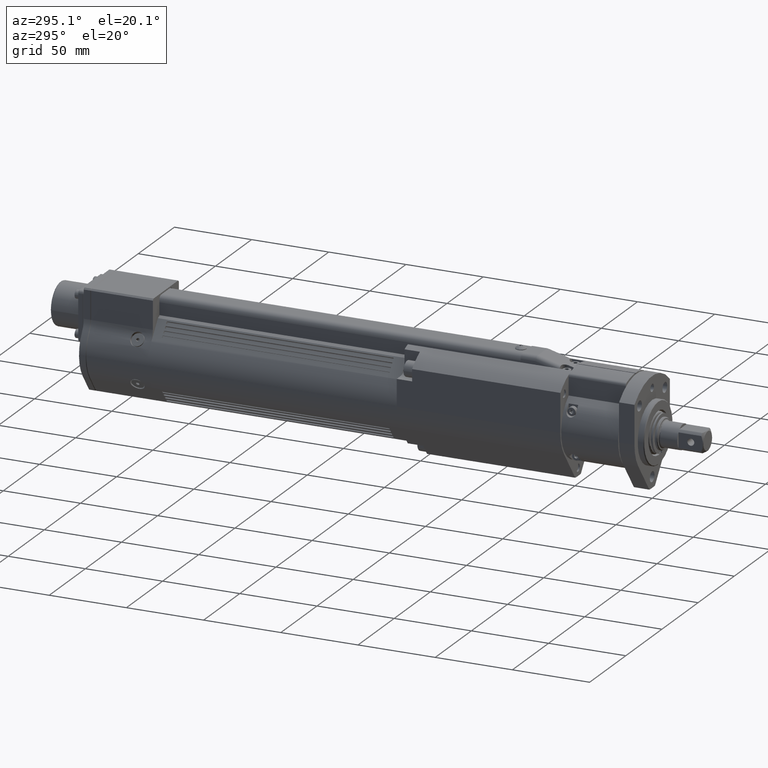
[diagram: clean part render]
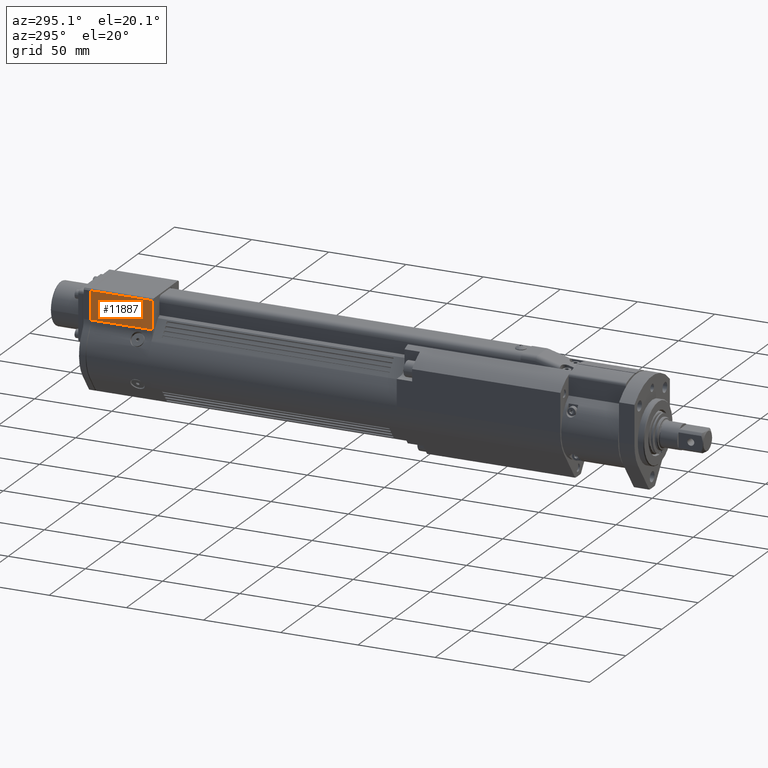
[diagram: same view with one face highlighted and labeled with its STEP entity id]
A machine part, auxiliary view. The second image highlights one B-rep face of the part: STEP entity #11887.
In plain terms, the highlighted planar face has unit normal (-1, 0, -0).
Its self-contained STEP definition (entity closure, byte-faithful):
#506=PLANE('',#12851);
#1214=LINE('',#18480,#2249);
#1217=LINE('',#18487,#2252);
#1237=LINE('',#18627,#2272);
#1250=LINE('',#18750,#2285);
#2249=VECTOR('',#14850,10.);
#2252=VECTOR('',#14857,10.);
#2272=VECTOR('',#14933,10.);
#2285=VECTOR('',#14992,10.);
#3294=FACE_OUTER_BOUND('',#4009,.T.);
#4009=EDGE_LOOP('',(#9018,#9019,#9020,#9021));
#5426=VERTEX_POINT('',#18477);
#5427=VERTEX_POINT('',#18479);
#5429=VERTEX_POINT('',#18485);
#5451=VERTEX_POINT('',#18626);
#6715=EDGE_CURVE('',#5426,#5427,#1214,.T.);
#6719=EDGE_CURVE('',#5429,#5426,#1217,.T.);
#6755=EDGE_CURVE('',#5451,#5427,#1237,.T.);
#6785=EDGE_CURVE('',#5429,#5451,#1250,.T.);
#9018=ORIENTED_EDGE('',*,*,#6719,.F.);
#9019=ORIENTED_EDGE('',*,*,#6785,.T.);
#9020=ORIENTED_EDGE('',*,*,#6755,.T.);
#9021=ORIENTED_EDGE('',*,*,#6715,.F.);
#11887=ADVANCED_FACE('',(#3294),#506,.T.);
#12851=AXIS2_PLACEMENT_3D('',#18749,#14990,#14991);
#14850=DIRECTION('',(6.6045456705661E-12,7.29172631085628E-18,-1.));
#14857=DIRECTION('',(-2.38745161435384E-16,-1.,-7.29172631243308E-18));
#14933=DIRECTION('',(-2.38745161435384E-16,-1.,-7.29172631243308E-18));
#14990=DIRECTION('center_axis',(-1.,2.38745161435432E-16,-6.6045456705661E-12));
#14991=DIRECTION('ref_axis',(6.6045456705661E-12,7.29172631085628E-18,-1.));
#14992=DIRECTION('',(6.6045456705661E-12,7.29172631085628E-18,-1.));
#18477=CARTESIAN_POINT('',(-18.0000000002635,315.,38.9999999998755));
#18479=CARTESIAN_POINT('',(-18.0000000001432,315.,20.7906228861673));
#18480=CARTESIAN_POINT('',(-18.0000000002701,315.,39.9999999998755));
#18485=CARTESIAN_POINT('',(-18.0000000002635,355.,38.9999999998755));
#18487=CARTESIAN_POINT('',(-18.0000000002635,355.,38.9999999998755));
#18626=CARTESIAN_POINT('',(-18.0000000001432,355.,20.7906228861673));
#18627=CARTESIAN_POINT('',(-18.0000000001432,355.,20.7906228861673));
#18749=CARTESIAN_POINT('Origin',(-18.0000000002701,355.,39.9999999998755));
#18750=CARTESIAN_POINT('',(-18.0000000002701,355.,39.9999999998755));